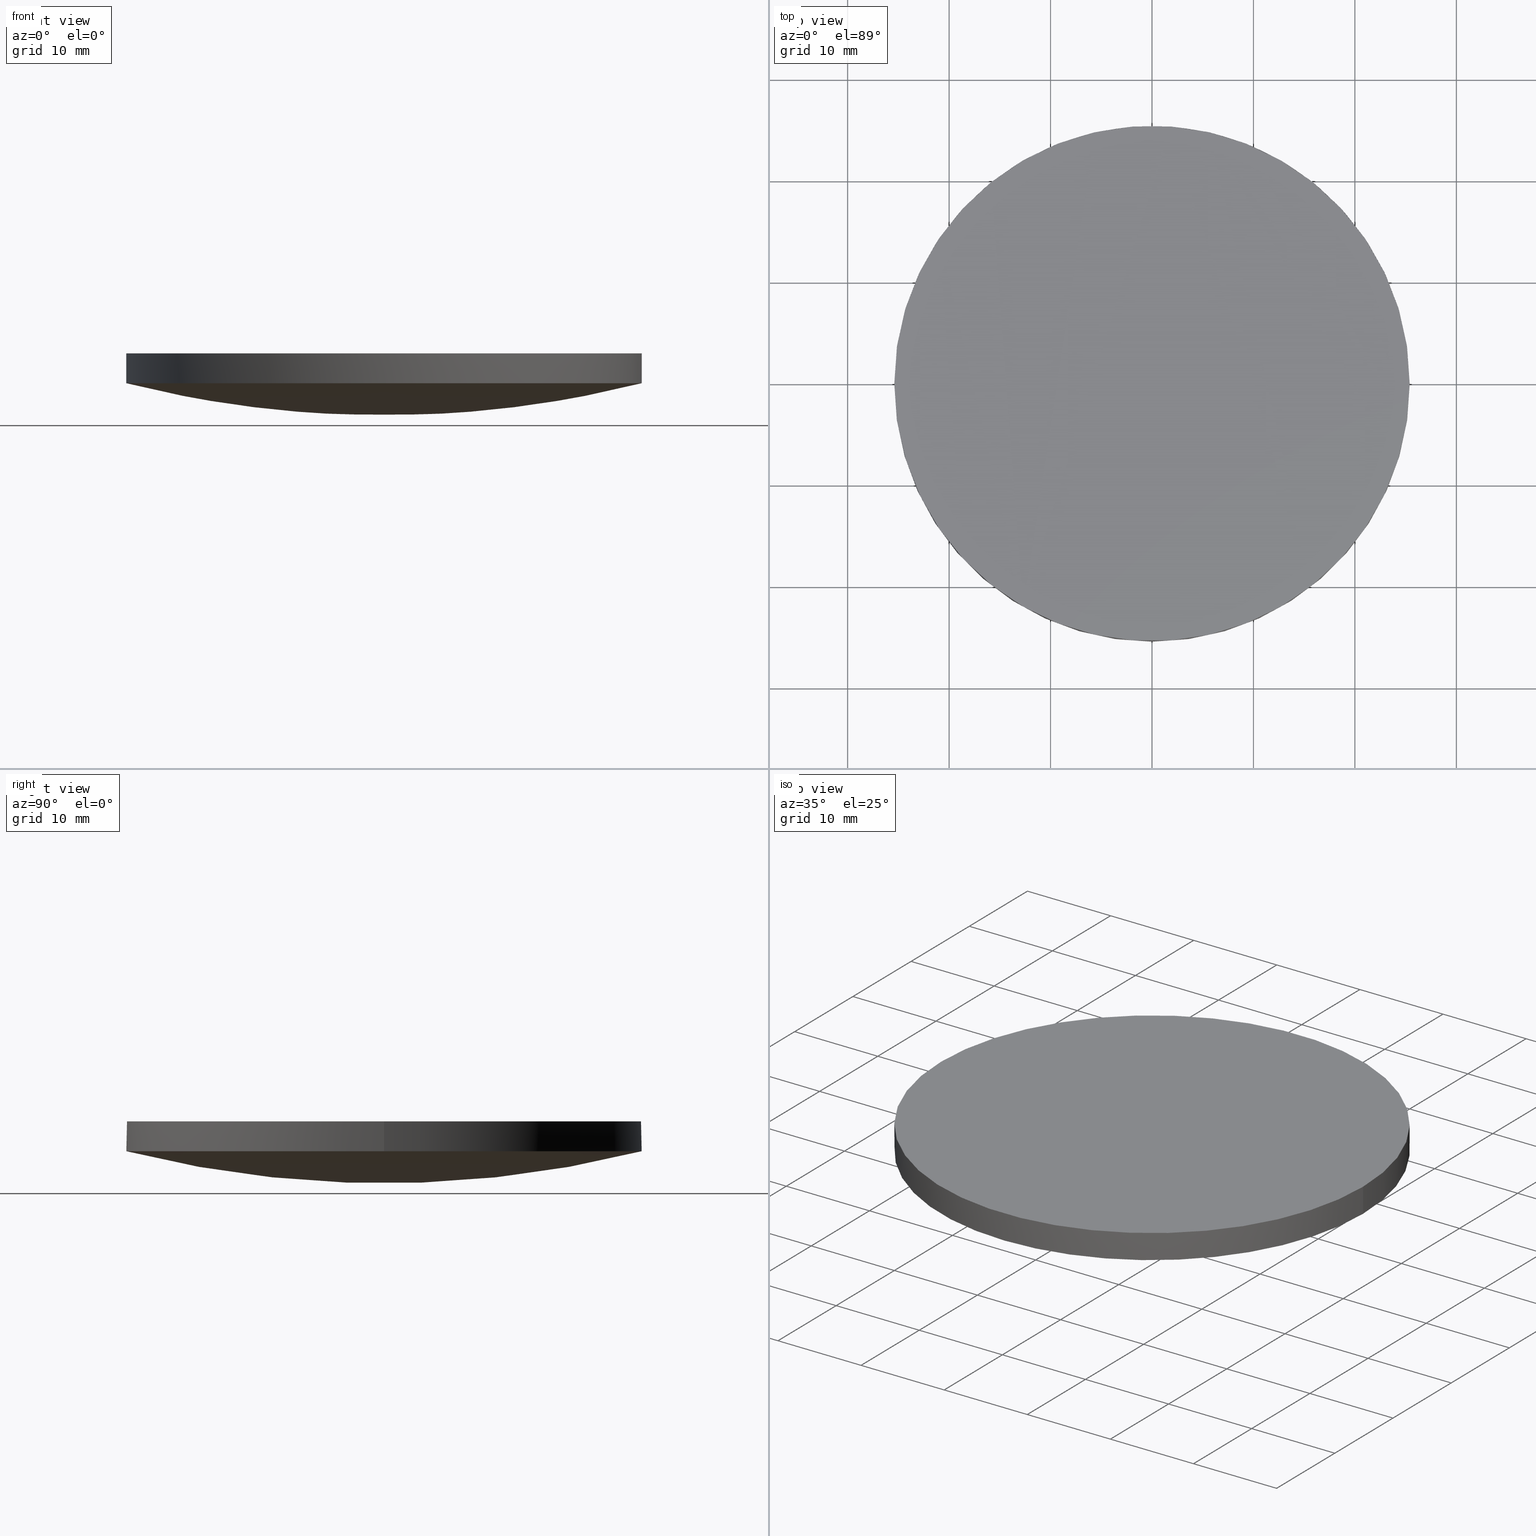
[diagram: canonical four-view strip — front | top / right | iso, engineering-drawing reading convention]
A machine part, canonical four-view strip (front | top / right | iso — engineering-drawing reading convention). The complete STEP part file that produces these views, byte-faithful:
ISO-10303-21;
HEADER;
FILE_DESCRIPTION (( 'STEP AP203' ),
    '1' );
FILE_NAME ('110-0509E BK7 pl-cx 50.8 F200.STEP',
    '2018-12-21T07:03:40',
    ( '' ),
    ( '' ),
    'SwSTEP 2.0',
    'SolidWorks 2017',
    '' );
FILE_SCHEMA (( 'CONFIG_CONTROL_DESIGN' ));
ENDSEC;

DATA;
#1 = DIRECTION ( 'NONE',  ( 1.000000000000000000, 0.0000000000000000000, 0.0000000000000000000 ) ) ;
#2 = PERSON_AND_ORGANIZATION ( #129, #166 ) ;
#3 = CARTESIAN_POINT ( 'NONE',  ( 25.82053995099668200, 8.748063978977391700, 2.129455122167295900 ) ) ;
#4 = DATE_TIME_ROLE ( 'classification_date' ) ;
#5 = EDGE_CURVE ( 'NONE', #98, #102, #193, .T. ) ;
#6 = CLOSED_SHELL ( 'NONE', ( #200, #24, #72, #57, #9 ) ) ;
#7 = CC_DESIGN_APPROVAL ( #201, ( #76 ) ) ;
#8 = CIRCLE ( 'NONE', #112, 25.39999999999999900 ) ;
#9 = ADVANCED_FACE ( 'NONE', ( #120 ), #62, .T. ) ;
#10 = CARTESIAN_POINT ( 'NONE',  ( -16.65174403639160500, 25.69844065608493700, 4.272342237781631800 ) ) ;
#11 = ORIENTED_EDGE ( 'NONE', *, *, #127, .F. ) ;
#12 = DIRECTION ( 'NONE',  ( 0.0000000000000000000, 0.0000000000000000000, 1.000000000000000000 ) ) ;
#13 = PERSON_AND_ORGANIZATION ( #129, #166 ) ;
#14 = LINE ( 'NONE', #191, #171 ) ;
#15 = CC_DESIGN_APPROVAL ( #213, ( #165 ) ) ;
#16 = DIRECTION ( 'NONE',  ( -0.0000000000000000000, -0.0000000000000000000, -1.000000000000000000 ) ) ;
#17 = CARTESIAN_POINT ( 'NONE',  ( 9.992007221626412800E-016, 4.884981308350691100E-015, 3.158814409218349900 ) ) ;
#18 = APPROVAL_STATUS ( 'not_yet_approved' ) ;
#19 = APPLICATION_CONTEXT ( 'configuration controlled 3d designs of mechanical parts and assemblies' ) ;
#20 = DIRECTION ( 'NONE',  ( 0.0000000000000000000, 0.0000000000000000000, 1.000000000000000000 ) ) ;
#21 = CALENDAR_DATE ( 2018, 21, 12 ) ;
#22 = CYLINDRICAL_SURFACE ( 'NONE', #223, 25.39999999999999900 ) ;
#23 = CARTESIAN_POINT ( 'NONE',  ( 9.992007221626412800E-016, 4.884981308350691100E-015, 6.099999999999999600 ) ) ;
#24 = ADVANCED_FACE ( 'NONE', ( #109 ), #42, .T. ) ;
#25 = AXIS2_PLACEMENT_3D ( 'NONE', #47, #214, #175 ) ;
#26 = VERTEX_POINT ( 'NONE', #46 ) ;
#27 = CC_DESIGN_DATE_AND_TIME_ASSIGNMENT ( #49, #107, ( #165 ) ) ;
#28 = CALENDAR_DATE ( 2018, 21, 12 ) ;
#29 = VERTEX_POINT ( 'NONE', #207 ) ;
#30 = CARTESIAN_POINT ( 'NONE',  ( -8.358203137555984000, -25.69844065608494100, 3.234681865602618200 ) ) ;
#31 = EDGE_CURVE ( 'NONE', #181, #33, #199, .T. ) ;
#32 = DIRECTION ( 'NONE',  ( 1.000000000000000000, 0.0000000000000000000, 0.0000000000000000000 ) ) ;
#33 = VERTEX_POINT ( 'NONE', #118 ) ;
#34 = APPROVAL_ROLE ( '' ) ;
#35 = DIRECTION ( 'NONE',  ( -0.0000000000000000000, -0.0000000000000000000, -1.000000000000000000 ) ) ;
#36 = CARTESIAN_POINT ( 'NONE',  ( 8.358203137555921800, 25.69844065608493700, 3.234681865602604800 ) ) ;
#37 = CC_DESIGN_PERSON_AND_ORGANIZATION_ASSIGNMENT ( #145, #180, ( #76 ) ) ;
#38 = APPROVAL_DATE_TIME ( #183, #201 ) ;
#39 = ORIENTED_EDGE ( 'NONE', *, *, #127, .T. ) ;
#40 = CC_DESIGN_APPROVAL ( #229, ( #202 ) ) ;
#41 = LOCAL_TIME ( 9, 3, 40.00000000000000000, #233 ) ;
#42 = CYLINDRICAL_SURFACE ( 'NONE', #110, 25.39999999999999900 ) ;
#43 = DIRECTION ( 'NONE',  ( 1.000000000000000000, 0.0000000000000000000, -2.832073977186420200E-016 ) ) ;
#44 = AXIS2_PLACEMENT_3D ( 'NONE', #65, #12, #157 ) ;
#45 = PERSON_AND_ORGANIZATION ( #129, #166 ) ;
#46 = CARTESIAN_POINT ( 'NONE',  ( 25.39999999999999900, 4.884981308350691100E-015, 3.158814409218349900 ) ) ;
#47 = CARTESIAN_POINT ( 'NONE',  ( 9.992007221626412800E-016, 4.884981308350691100E-015, 6.099999999999999600 ) ) ;
#48 = CC_DESIGN_DATE_AND_TIME_ASSIGNMENT ( #203, #4, ( #76 ) ) ;
#49 = DATE_AND_TIME ( #28, #130 ) ;
#50 = DIRECTION ( 'NONE',  ( 1.000000000000000000, 0.0000000000000000000, 0.0000000000000000000 ) ) ;
#51 = CIRCLE ( 'NONE', #85, 25.39999999999999900 ) ;
#52 =( LENGTH_UNIT ( ) NAMED_UNIT ( * ) SI_UNIT ( .MILLI., .METRE. ) );
#53 = CC_DESIGN_PERSON_AND_ORGANIZATION_ASSIGNMENT ( #170, #56, ( #202 ) ) ;
#54 = CARTESIAN_POINT ( 'NONE',  ( 17.37038757358133600, 8.748063978977391700, -0.01868238477917933500 ) ) ;
#55 = EDGE_LOOP ( 'NONE', ( #78, #87, #151 ) ) ;
#56 = PERSON_AND_ORGANIZATION_ROLE ( 'creator' ) ;
#57 = ADVANCED_FACE ( 'NONE', ( #222 ), #22, .T. ) ;
#58 = ORIENTED_EDGE ( 'NONE', *, *, #150, .T. ) ;
#59 = COORDINATED_UNIVERSAL_TIME_OFFSET ( 2, 0, .AHEAD. ) ;
#60 = CIRCLE ( 'NONE', #160, 25.39999999999999900 ) ;
#61 = CARTESIAN_POINT ( 'NONE',  ( -17.37038757358139700, 8.748063978977391700, -0.01868238477916025700 ) ) ;
#62 = PLANE ( 'NONE',  #44 ) ;
#63 = CIRCLE ( 'NONE', #168, 25.39999999999999900 ) ;
#64 = CARTESIAN_POINT ( 'NONE',  ( 9.992007221626412800E-016, 4.884981308350691100E-015, 3.158814409218349900 ) ) ;
#65 = CARTESIAN_POINT ( 'NONE',  ( 0.0000000000000000000, 52.02000000000000300, 6.099999999999999600 ) ) ;
#66 = CC_DESIGN_PERSON_AND_ORGANIZATION_ASSIGNMENT ( #45, #104, ( #202 ) ) ;
#67 = ORIENTED_EDGE ( 'NONE', *, *, #208, .F. ) ;
#68 = CARTESIAN_POINT ( 'NONE',  ( 9.992007221626412800E-016, 4.884981308350691100E-015, 3.158814409218349900 ) ) ;
#69 = CIRCLE ( 'NONE', #198, 25.39999999999999900 ) ;
#70 =( NAMED_UNIT ( * ) SI_UNIT ( $, .STERADIAN. ) SOLID_ANGLE_UNIT ( ) );
#71 = APPLICATION_CONTEXT ( 'configuration controlled 3d designs of mechanical parts and assemblies' ) ;
#72 = ADVANCED_FACE ( 'NONE', ( #159 ), #148, .T. ) ;
#73 = LOCAL_TIME ( 9, 3, 40.00000000000000000, #59 ) ;
#74 = ORIENTED_EDGE ( 'NONE', *, *, #173, .F. ) ;
#75 = APPROVAL_PERSON_ORGANIZATION ( #13, #201, #126 ) ;
#76 = SECURITY_CLASSIFICATION ( '', '', #91 ) ;
#77 = DESIGN_CONTEXT ( 'detailed design', #19, 'design' ) ;
#78 = ORIENTED_EDGE ( 'NONE', *, *, #132, .T. ) ;
#79 = CARTESIAN_POINT ( 'NONE',  ( -4.857225732735059900E-014, 8.748063978977391700, -1.101125328599603400 ) ) ;
#80 = PRODUCT_RELATED_PRODUCT_CATEGORY ( 'detail', '', ( #147 ) ) ;
#81 = CARTESIAN_POINT ( 'NONE',  ( -25.82053995099674300, 8.748063978977391700, 2.129455122167320400 ) ) ;
#82 = EDGE_CURVE ( 'NONE', #33, #29, #194, .T. ) ;
#83 = CARTESIAN_POINT ( 'NONE',  ( -2.136858017711129700E-014, 25.39999999999998400, 3.158814409218356500 ) ) ;
#84 = CARTESIAN_POINT ( 'NONE',  ( 25.82053995099668200, -8.748063978977395300, 2.129455122167297300 ) ) ;
#85 = AXIS2_PLACEMENT_3D ( 'NONE', #17, #16, #32 ) ;
#86 = CALENDAR_DATE ( 2018, 21, 12 ) ;
#87 = ORIENTED_EDGE ( 'NONE', *, *, #5, .T. ) ;
#88 = CARTESIAN_POINT ( 'NONE',  ( 24.75229872241546800, -25.69844065608494400, 6.331607511461976800 ) ) ;
#89 = APPROVAL_STATUS ( 'not_yet_approved' ) ;
#90 = APPROVAL_STATUS ( 'not_yet_approved' ) ;
#91 = SECURITY_CLASSIFICATION_LEVEL ( 'unclassified' ) ;
#92 = APPROVAL_DATE_TIME ( #138, #229 ) ;
#93 =( GEOMETRIC_REPRESENTATION_CONTEXT ( 3 ) GLOBAL_UNCERTAINTY_ASSIGNED_CONTEXT ( ( #197 ) ) GLOBAL_UNIT_ASSIGNED_CONTEXT ( ( #52, #125, #70 ) ) REPRESENTATION_CONTEXT ( 'NONE', 'WORKASPACE' ) );
#94 = CALENDAR_DATE ( 2018, 21, 12 ) ;
#95 = AXIS2_PLACEMENT_3D ( 'NONE', #99, #43, #135 ) ;
#96 = CARTESIAN_POINT ( 'NONE',  ( -16.65174403639160500, -25.69844065608494100, 4.272342237781631800 ) ) ;
#97 = CARTESIAN_POINT ( 'NONE',  ( -4.510281037539698400E-014, -25.69844065608494400, 3.234681865602613300 ) ) ;
#98 = VERTEX_POINT ( 'NONE', #190 ) ;
#99 = CARTESIAN_POINT ( 'NONE',  ( 7.105427357601000300E-015, -7.105427357601000300E-015, 103.7000000000000000 ) ) ;
#100 = CARTESIAN_POINT ( 'NONE',  ( -2.257502662469695600E-014, 8.748063978977391700, -1.101125328599609900 ) ) ;
#101 = PERSON_AND_ORGANIZATION ( #129, #166 ) ;
#102 = VERTEX_POINT ( 'NONE', #83 ) ;
#103 = CARTESIAN_POINT ( 'NONE',  ( -2.257502662469695600E-014, -8.748063978977395300, -1.101125328599608300 ) ) ;
#104 = PERSON_AND_ORGANIZATION_ROLE ( 'design_supplier' ) ;
#105 = ORIENTED_EDGE ( 'NONE', *, *, #82, .T. ) ;
#106 = MECHANICAL_CONTEXT ( 'NONE', #71, 'mechanical' ) ;
#107 = DATE_TIME_ROLE ( 'creation_date' ) ;
#108 = DATE_AND_TIME ( #94, #134 ) ;
#109 = FACE_OUTER_BOUND ( 'NONE', #234, .T. ) ;
#110 = AXIS2_PLACEMENT_3D ( 'NONE', #139, #228, #187 ) ;
#111 = AXIS2_PLACEMENT_3D ( 'NONE', #144, #20, #163 ) ;
#112 = AXIS2_PLACEMENT_3D ( 'NONE', #143, #215, #209 ) ;
#113 = APPROVAL_PERSON_ORGANIZATION ( #216, #229, #162 ) ;
#114 = ORIENTED_EDGE ( 'NONE', *, *, #31, .T. ) ;
#115 = CARTESIAN_POINT ( 'NONE',  ( -4.857225732735059900E-014, -8.748063978977395300, -1.101125328599601700 ) ) ;
#116 = DIRECTION ( 'NONE',  ( 0.0000000000000000000, 0.0000000000000000000, 1.000000000000000000 ) ) ;
#117 = VECTOR ( 'NONE', #225, 1000.000000000000000 ) ;
#118 = CARTESIAN_POINT ( 'NONE',  ( -25.39999999999999900, 7.995584178184967200E-015, 6.099999999999999600 ) ) ;
#119 = APPROVAL_PERSON_ORGANIZATION ( #101, #213, #34 ) ;
#120 = FACE_OUTER_BOUND ( 'NONE', #217, .T. ) ;
#121 = COORDINATED_UNIVERSAL_TIME_OFFSET ( 2, 0, .AHEAD. ) ;
#122 = CARTESIAN_POINT ( 'NONE',  ( 8.718920228462247100, -8.748063978977395300, -1.101125328599610500 ) ) ;
#123 = CARTESIAN_POINT ( 'NONE',  ( 24.75229872241546800, 25.69844065608494100, 6.331607511461976800 ) ) ;
#124 = CARTESIAN_POINT ( 'NONE',  ( 16.65174403639154100, 25.69844065608493700, 4.272342237781612300 ) ) ;
#125 =( NAMED_UNIT ( * ) PLANE_ANGLE_UNIT ( ) SI_UNIT ( $, .RADIAN. ) );
#126 = APPROVAL_ROLE ( '' ) ;
#127 = EDGE_CURVE ( 'NONE', #26, #29, #14, .T. ) ;
#128 = CARTESIAN_POINT ( 'NONE',  ( -2.134709395221717500E-014, 25.69844065608494100, 3.234681865602606600 ) ) ;
#129 = PERSON ( 'UNSPECIFIED', 'UNSPECIFIED', 'UNSPECIFIED', ('UNSPECIFIED'), ('UNSPECIFIED'), ('UNSPECIFIED') ) ;
#130 = LOCAL_TIME ( 9, 3, 40.00000000000000000, #221 ) ;
#131 = EDGE_LOOP ( 'NONE', ( #167, #176, #226, #39, #161 ) ) ;
#132 = EDGE_CURVE ( 'NONE', #26, #98, #60, .T. ) ;
#133 = EDGE_CURVE ( 'NONE', #102, #26, #63, .T. ) ;
#134 = LOCAL_TIME ( 9, 3, 40.00000000000000000, #149 ) ;
#135 = DIRECTION ( 'NONE',  ( 0.0000000000000000000, -1.000000000000000000, 0.0000000000000000000 ) ) ;
#136 = CARTESIAN_POINT ( 'NONE',  ( -8.358203137555984000, 25.69844065608493700, 3.234681865602618200 ) ) ;
#137 = CARTESIAN_POINT ( 'NONE',  ( -24.75229872241552400, -25.69844065608494400, 6.331607511462000700 ) ) ;
#138 = DATE_AND_TIME ( #184, #210 ) ;
#139 = CARTESIAN_POINT ( 'NONE',  ( 9.992007221626412800E-016, 4.884981308350691100E-015, 3.158814409218349900 ) ) ;
#140 = DIRECTION ( 'NONE',  ( -0.0000000000000000000, -0.0000000000000000000, -1.000000000000000000 ) ) ;
#141 = CARTESIAN_POINT ( 'NONE',  ( -2.134709395221717500E-014, -25.69844065608494400, 3.234681865602606600 ) ) ;
#142 = ORIENTED_EDGE ( 'NONE', *, *, #82, .F. ) ;
#143 = CARTESIAN_POINT ( 'NONE',  ( 9.992007221626412800E-016, 4.884981308350691100E-015, 3.158814409218349900 ) ) ;
#144 = CARTESIAN_POINT ( 'NONE',  ( 0.0000000000000000000, 0.0000000000000000000, 0.0000000000000000000 ) ) ;
#145 = PERSON_AND_ORGANIZATION ( #129, #166 ) ;
#146 = APPLICATION_PROTOCOL_DEFINITION ( 'international standard', 'config_control_design', 1994, #19 ) ;
#147 = PRODUCT ( '110-0509E BK7 pl-cx 50.8 F200', '110-0509E BK7 pl-cx 50.8 F200', '', ( #106 ) ) ;
#148 =( BOUNDED_SURFACE ( )  B_SPLINE_SURFACE ( 3, 3, ( 
 ( #137, #96, #30, #97 ),
 ( #169, #172, #227, #115 ),
 ( #81, #61, #186, #79 ),
 ( #206, #10, #136, #155 ) ),
 .UNSPECIFIED., .F., .F., .T. ) 
 B_SPLINE_SURFACE_WITH_KNOTS ( ( 4, 4 ),
 ( 4, 4 ),
 ( 0.0000000000000000000, 1.000000000000000000 ),
 ( 0.0000000000000000000, 1.000000000000000000 ),
 .UNSPECIFIED. ) 
 GEOMETRIC_REPRESENTATION_ITEM ( )  RATIONAL_B_SPLINE_SURFACE ( (
 ( 1.000000000000000000, 0.9948424130835996600, 0.9948424130835996600, 1.000000000000000000),
 ( 0.9792048738951938400, 0.9741545396491165800, 0.9741545396491165800, 0.9792048738951938400),
 ( 0.9792048738951938400, 0.9741545396491165800, 0.9741545396491165800, 0.9792048738951938400),
 ( 1.000000000000000000, 0.9948424130835996600, 0.9948424130835996600, 1.000000000000000000) ) ) 
 REPRESENTATION_ITEM ( '' )  SURFACE ( )  );
#149 = COORDINATED_UNIVERSAL_TIME_OFFSET ( 2, 0, .AHEAD. ) ;
#150 = EDGE_CURVE ( 'NONE', #98, #181, #51, .T. ) ;
#151 = ORIENTED_EDGE ( 'NONE', *, *, #133, .T. ) ;
#152 =( BOUNDED_SURFACE ( )  B_SPLINE_SURFACE ( 3, 3, ( 
 ( #141, #177, #212, #88 ),
 ( #103, #122, #235, #84 ),
 ( #100, #219, #54, #3 ),
 ( #128, #36, #124, #123 ) ),
 .UNSPECIFIED., .F., .F., .T. ) 
 B_SPLINE_SURFACE_WITH_KNOTS ( ( 4, 4 ),
 ( 4, 4 ),
 ( 0.0000000000000000000, 1.000000000000000000 ),
 ( 0.0000000000000000000, 1.000000000000000000 ),
 .UNSPECIFIED. ) 
 GEOMETRIC_REPRESENTATION_ITEM ( )  RATIONAL_B_SPLINE_SURFACE ( (
 ( 1.000000000000000000, 0.9948424130835996600, 0.9948424130835996600, 1.000000000000000000),
 ( 0.9792048738951938400, 0.9741545396491165800, 0.9741545396491165800, 0.9792048738951938400),
 ( 0.9792048738951938400, 0.9741545396491165800, 0.9741545396491165800, 0.9792048738951938400),
 ( 1.000000000000000000, 0.9948424130835996600, 0.9948424130835996600, 1.000000000000000000) ) ) 
 REPRESENTATION_ITEM ( '' )  SURFACE ( )  );
#153 = PERSON_AND_ORGANIZATION ( #129, #166 ) ;
#154 = FACE_OUTER_BOUND ( 'NONE', #55, .T. ) ;
#155 = CARTESIAN_POINT ( 'NONE',  ( -4.510281037539698400E-014, 25.69844065608494100, 3.234681865602613300 ) ) ;
#156 = CC_DESIGN_PERSON_AND_ORGANIZATION_ASSIGNMENT ( #153, #196, ( #147 ) ) ;
#157 = DIRECTION ( 'NONE',  ( 1.000000000000000000, 0.0000000000000000000, -0.0000000000000000000 ) ) ;
#158 = SHAPE_DEFINITION_REPRESENTATION ( #224, #164 ) ;
#159 = FACE_OUTER_BOUND ( 'NONE', #218, .T. ) ;
#160 = AXIS2_PLACEMENT_3D ( 'NONE', #68, #140, #231 ) ;
#161 = ORIENTED_EDGE ( 'NONE', *, *, #208, .T. ) ;
#162 = APPROVAL_ROLE ( '' ) ;
#163 = DIRECTION ( 'NONE',  ( 1.000000000000000000, 0.0000000000000000000, 0.0000000000000000000 ) ) ;
#164 = ADVANCED_BREP_SHAPE_REPRESENTATION ( '110-0509E BK7 pl-cx 50.8 F200', ( #205, #111 ), #93 ) ;
#165 = PRODUCT_DEFINITION ( 'UNKNOWN', '', #202, #77 ) ;
#166 = ORGANIZATION ( 'UNSPECIFIED', 'UNSPECIFIED', '' ) ;
#167 = ORIENTED_EDGE ( 'NONE', *, *, #31, .F. ) ;
#168 = AXIS2_PLACEMENT_3D ( 'NONE', #192, #232, #50 ) ;
#169 = CARTESIAN_POINT ( 'NONE',  ( -25.82053995099674300, -8.748063978977395300, 2.129455122167322100 ) ) ;
#170 = PERSON_AND_ORGANIZATION ( #129, #166 ) ;
#171 = VECTOR ( 'NONE', #178, 1000.000000000000000 ) ;
#172 = CARTESIAN_POINT ( 'NONE',  ( -17.37038757358139700, -8.748063978977395300, -0.01868238477915851900 ) ) ;
#173 = EDGE_CURVE ( 'NONE', #181, #102, #8, .T. ) ;
#174 = DIRECTION ( 'NONE',  ( 1.000000000000000000, 0.0000000000000000000, 0.0000000000000000000 ) ) ;
#175 = DIRECTION ( 'NONE',  ( 1.000000000000000000, 0.0000000000000000000, 0.0000000000000000000 ) ) ;
#176 = ORIENTED_EDGE ( 'NONE', *, *, #150, .F. ) ;
#177 = CARTESIAN_POINT ( 'NONE',  ( 8.358203137555921800, -25.69844065608494100, 3.234681865602604800 ) ) ;
#178 = DIRECTION ( 'NONE',  ( 0.0000000000000000000, 0.0000000000000000000, 1.000000000000000000 ) ) ;
#179 = CC_DESIGN_PERSON_AND_ORGANIZATION_ASSIGNMENT ( #2, #220, ( #165 ) ) ;
#180 = PERSON_AND_ORGANIZATION_ROLE ( 'classification_officer' ) ;
#181 = VERTEX_POINT ( 'NONE', #230 ) ;
#182 = CC_DESIGN_SECURITY_CLASSIFICATION ( #76, ( #202 ) ) ;
#183 = DATE_AND_TIME ( #86, #41 ) ;
#184 = CALENDAR_DATE ( 2018, 21, 12 ) ;
#185 = ORIENTED_EDGE ( 'NONE', *, *, #133, .F. ) ;
#186 = CARTESIAN_POINT ( 'NONE',  ( -8.718920228462314600, 8.748063978977391700, -1.101125328599599200 ) ) ;
#187 = DIRECTION ( 'NONE',  ( 1.000000000000000000, 0.0000000000000000000, 0.0000000000000000000 ) ) ;
#188 = CARTESIAN_POINT ( 'NONE',  ( -25.39999999999999900, 7.995584178184967200E-015, 3.158814409218349900 ) ) ;
#189 = APPROVAL_DATE_TIME ( #108, #213 ) ;
#190 = CARTESIAN_POINT ( 'NONE',  ( -2.136858017711129700E-014, -25.39999999999998800, 3.158814409218356500 ) ) ;
#191 = CARTESIAN_POINT ( 'NONE',  ( 25.39999999999999900, 4.884981308350691100E-015, 3.158814409218349900 ) ) ;
#192 = CARTESIAN_POINT ( 'NONE',  ( 9.992007221626412800E-016, 4.884981308350691100E-015, 3.158814409218349900 ) ) ;
#193 = CIRCLE ( 'NONE', #95, 103.6999999999999900 ) ;
#194 = CIRCLE ( 'NONE', #25, 25.39999999999999900 ) ;
#195 = APPLICATION_PROTOCOL_DEFINITION ( 'international standard', 'config_control_design', 1994, #71 ) ;
#196 = PERSON_AND_ORGANIZATION_ROLE ( 'design_owner' ) ;
#197 = UNCERTAINTY_MEASURE_WITH_UNIT (LENGTH_MEASURE( 1.000000000000000100E-005 ), #52, 'distance_accuracy_value', 'NONE');
#198 = AXIS2_PLACEMENT_3D ( 'NONE', #23, #35, #1 ) ;
#199 = LINE ( 'NONE', #188, #117 ) ;
#200 = ADVANCED_FACE ( 'NONE', ( #154 ), #152, .T. ) ;
#201 = APPROVAL ( #89, 'UNSPECIFIED' ) ;
#202 = PRODUCT_DEFINITION_FORMATION_WITH_SPECIFIED_SOURCE ( 'ANY', '', #147, .NOT_KNOWN. ) ;
#203 = DATE_AND_TIME ( #21, #73 ) ;
#204 = ORIENTED_EDGE ( 'NONE', *, *, #5, .F. ) ;
#205 = MANIFOLD_SOLID_BREP ( 'Imported1', #6 ) ;
#206 = CARTESIAN_POINT ( 'NONE',  ( -24.75229872241552400, 25.69844065608494100, 6.331607511462000700 ) ) ;
#207 = CARTESIAN_POINT ( 'NONE',  ( 25.39999999999999900, 4.884981308350691100E-015, 6.099999999999999600 ) ) ;
#208 = EDGE_CURVE ( 'NONE', #29, #33, #69, .T. ) ;
#209 = DIRECTION ( 'NONE',  ( 1.000000000000000000, 0.0000000000000000000, 0.0000000000000000000 ) ) ;
#210 = LOCAL_TIME ( 9, 3, 40.00000000000000000, #121 ) ;
#211 = ORIENTED_EDGE ( 'NONE', *, *, #173, .T. ) ;
#212 = CARTESIAN_POINT ( 'NONE',  ( 16.65174403639154100, -25.69844065608494100, 4.272342237781612300 ) ) ;
#213 = APPROVAL ( #90, 'UNSPECIFIED' ) ;
#214 = DIRECTION ( 'NONE',  ( -0.0000000000000000000, -0.0000000000000000000, -1.000000000000000000 ) ) ;
#215 = DIRECTION ( 'NONE',  ( -0.0000000000000000000, -0.0000000000000000000, -1.000000000000000000 ) ) ;
#216 = PERSON_AND_ORGANIZATION ( #129, #166 ) ;
#217 = EDGE_LOOP ( 'NONE', ( #67, #142 ) ) ;
#218 = EDGE_LOOP ( 'NONE', ( #204, #58, #211 ) ) ;
#219 = CARTESIAN_POINT ( 'NONE',  ( 8.718920228462247100, 8.748063978977391700, -1.101125328599612100 ) ) ;
#220 = PERSON_AND_ORGANIZATION_ROLE ( 'creator' ) ;
#221 = COORDINATED_UNIVERSAL_TIME_OFFSET ( 2, 0, .AHEAD. ) ;
#222 = FACE_OUTER_BOUND ( 'NONE', #131, .T. ) ;
#223 = AXIS2_PLACEMENT_3D ( 'NONE', #64, #116, #174 ) ;
#224 = PRODUCT_DEFINITION_SHAPE ( 'NONE', 'NONE',  #165 ) ;
#225 = DIRECTION ( 'NONE',  ( 0.0000000000000000000, 0.0000000000000000000, 1.000000000000000000 ) ) ;
#226 = ORIENTED_EDGE ( 'NONE', *, *, #132, .F. ) ;
#227 = CARTESIAN_POINT ( 'NONE',  ( -8.718920228462314600, -8.748063978977395300, -1.101125328599597200 ) ) ;
#228 = DIRECTION ( 'NONE',  ( 0.0000000000000000000, 0.0000000000000000000, 1.000000000000000000 ) ) ;
#229 = APPROVAL ( #18, 'UNSPECIFIED' ) ;
#230 = CARTESIAN_POINT ( 'NONE',  ( -25.39999999999999900, 7.995584178184967200E-015, 3.158814409218349900 ) ) ;
#231 = DIRECTION ( 'NONE',  ( 1.000000000000000000, 0.0000000000000000000, 0.0000000000000000000 ) ) ;
#232 = DIRECTION ( 'NONE',  ( -0.0000000000000000000, -0.0000000000000000000, -1.000000000000000000 ) ) ;
#233 = COORDINATED_UNIVERSAL_TIME_OFFSET ( 2, 0, .AHEAD. ) ;
#234 = EDGE_LOOP ( 'NONE', ( #74, #114, #105, #11, #185 ) ) ;
#235 = CARTESIAN_POINT ( 'NONE',  ( 17.37038757358133600, -8.748063978977395300, -0.01868238477917803800 ) ) ;
ENDSEC;
END-ISO-10303-21;
